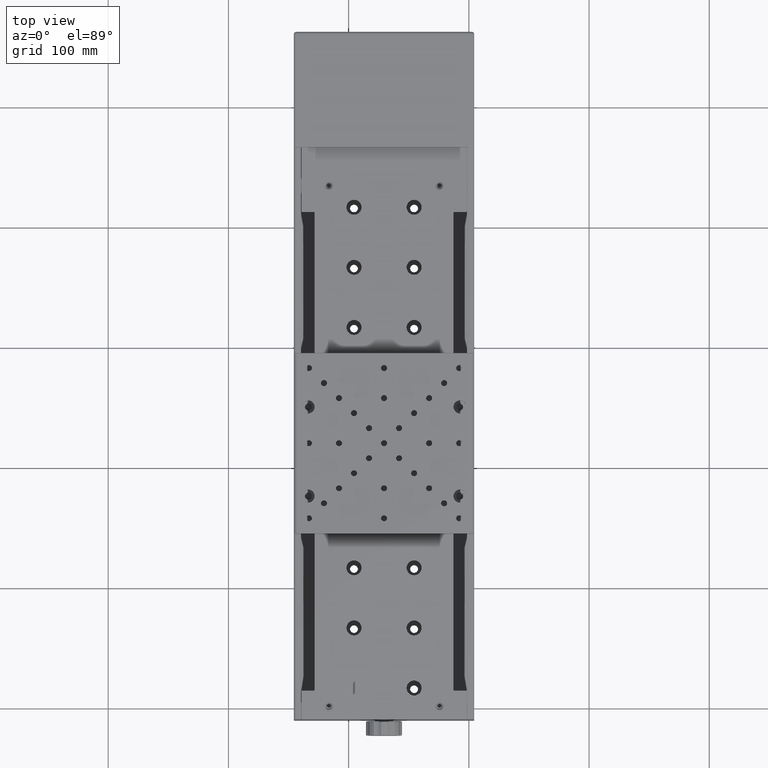
[diagram: clean part render]
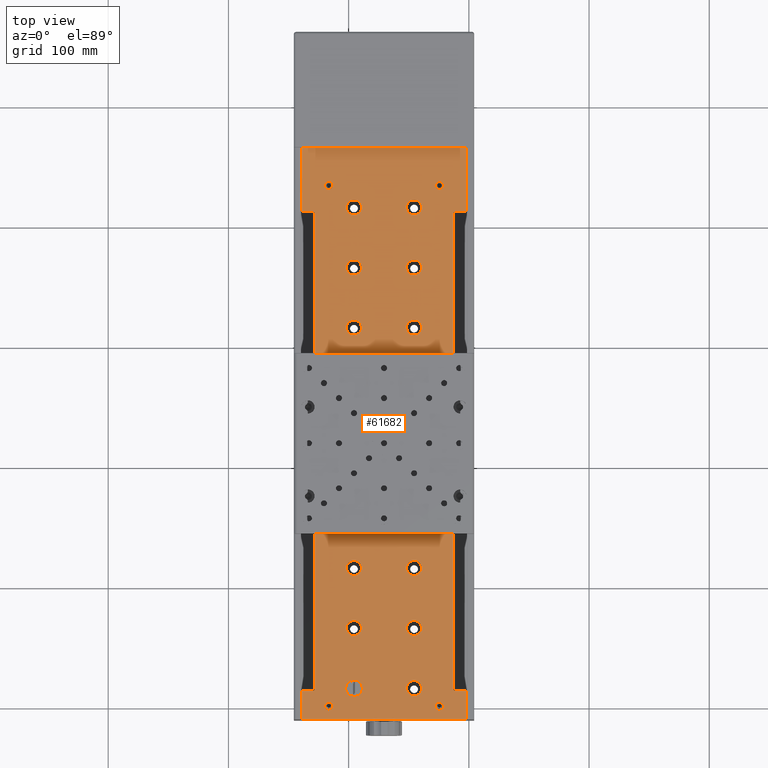
[diagram: same view with one face highlighted and labeled with its STEP entity id]
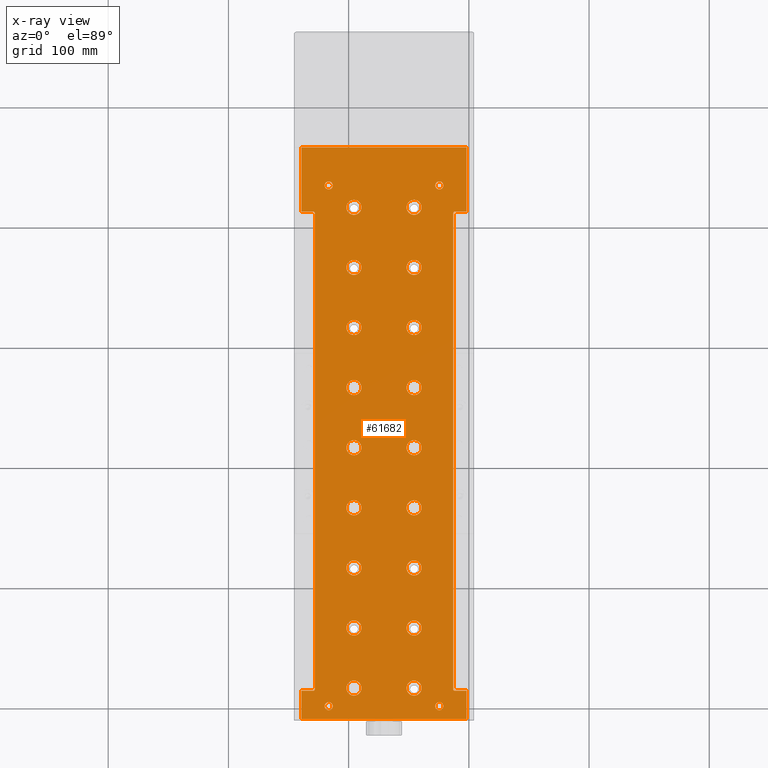
[diagram: x-ray of the same camera — body ghosted, the highlighted face saturated]
A machine part, top view. The second image highlights one B-rep face of the part: STEP entity #61682.
The next image is the same camera in x-ray: the body ghosted, the highlighted face saturated — about 0% of this face is hidden behind the body in this view.
In plain terms, the highlighted planar face has unit normal (0, -0, 1).
Its self-contained STEP definition (entity closure, byte-faithful):
#171 = VERTEX_POINT ( 'NONE', #22665 ) ;
#201 = EDGE_LOOP ( 'NONE', ( #4206, #63130 ) ) ;
#273 = AXIS2_PLACEMENT_3D ( 'NONE', #17600, #43266, #18000 ) ;
#422 = CARTESIAN_POINT ( 'NONE',  ( -45.58543230288079684, 59.78119024182799990, 41.04665025355559749 ) ) ;
#435 = VERTEX_POINT ( 'NONE', #1484 ) ;
#627 = CARTESIAN_POINT ( 'NONE',  ( -95.58543230288069026, 272.2811902418280283, 41.04665025355559749 ) ) ;
#868 = AXIS2_PLACEMENT_3D ( 'NONE', #25882, #26695, #33194 ) ;
#961 = VECTOR ( 'NONE', #31531, 1000.000000000000000 ) ;
#1043 = DIRECTION ( 'NONE',  ( 5.394906579123439885E-17, 0.000000000000000000, 1.000000000000000000 ) ) ;
#1165 = AXIS2_PLACEMENT_3D ( 'NONE', #66423, #22456, #28574 ) ;
#1302 = CIRCLE ( 'NONE', #59803, 6.250000000000005329 ) ;
#1451 = VECTOR ( 'NONE', #71578, 1000.000000000000000 ) ;
#1484 = CARTESIAN_POINT ( 'NONE',  ( -45.58543230288089632, -90.21880975817200010, 41.04665025355559749 ) ) ;
#1656 = CARTESIAN_POINT ( 'NONE',  ( -95.58543230288090342, -90.21880975817200010, 41.04665025355559749 ) ) ;
#2136 = CIRCLE ( 'NONE', #868, 6.250000000000001776 ) ;
#2307 = AXIS2_PLACEMENT_3D ( 'NONE', #77266, #27222, #46333 ) ;
#2448 = EDGE_CURVE ( 'NONE', #18149, #435, #70475, .T. ) ;
#2845 = DIRECTION ( 'NONE',  ( 0.000000000000000000, 1.000000000000000000, 0.000000000000000000 ) ) ;
#3046 = ORIENTED_EDGE ( 'NONE', *, *, #48364, .F. ) ;
#3328 = EDGE_CURVE ( 'NONE', #56390, #43816, #13496, .T. ) ;
#3615 = VERTEX_POINT ( 'NONE', #31246 ) ;
#4145 = CARTESIAN_POINT ( 'NONE',  ( -45.58543230288089632, -33.96880975817204984, 41.04665025355559749 ) ) ;
#4206 = ORIENTED_EDGE ( 'NONE', *, *, #35173, .F. ) ;
#4210 = CIRCLE ( 'NONE', #73129, 6.249999999999998224 ) ;
#4266 = ORIENTED_EDGE ( 'NONE', *, *, #26356, .T. ) ;
#4406 = CARTESIAN_POINT ( 'NONE',  ( -129.3854323028806164, 311.2311902418280170, 41.04665025355559749 ) ) ;
#4463 = CIRCLE ( 'NONE', #61651, 6.249999999999977796 ) ;
#4918 = CIRCLE ( 'NONE', #2307, 1.200000000000034373 ) ;
#5207 = AXIS2_PLACEMENT_3D ( 'NONE', #50328, #44233, #61761 ) ;
#5231 = AXIS2_PLACEMENT_3D ( 'NONE', #29546, #54380, #73099 ) ;
#5461 = CARTESIAN_POINT ( 'NONE',  ( -24.58543230288094961, -98.96880975817198589, 41.04665025355559749 ) ) ;
#5548 = DIRECTION ( 'NONE',  ( 5.394906579123439885E-17, 0.000000000000000000, 1.000000000000000000 ) ) ;
#5596 = CIRCLE ( 'NONE', #70619, 3.359999999999974118 ) ;
#5640 = AXIS2_PLACEMENT_3D ( 'NONE', #43349, #80392, #79180 ) ;
#5733 = CARTESIAN_POINT ( 'NONE',  ( -95.58543230288080395, 72.28119024182799990, 41.04665025355559749 ) ) ;
#6095 = CARTESIAN_POINT ( 'NONE',  ( -45.58543230288070447, 316.0311902418280283, 41.04665025355559749 ) ) ;
#6101 = CARTESIAN_POINT ( 'NONE',  ( -139.3854323028806164, 365.8311902418279828, 41.04665025355559749 ) ) ;
#6648 = CARTESIAN_POINT ( 'NONE',  ( -95.58543230288080395, 116.0311902418279999, 41.04665025355559749 ) ) ;
#6687 = CARTESIAN_POINT ( 'NONE',  ( -45.58543230288089632, -77.71880975817200010, 41.04665025355559749 ) ) ;
#6768 = CIRCLE ( 'NONE', #273, 3.360000000000002096 ) ;
#6841 = FACE_BOUND ( 'NONE', #18883, .T. ) ;
#7195 = CARTESIAN_POINT ( 'NONE',  ( -95.58543230288080395, 122.2811902418279999, 41.04665025355559749 ) ) ;
#7234 = FACE_BOUND ( 'NONE', #11617, .T. ) ;
#7345 = EDGE_CURVE ( 'NONE', #36289, #20550, #24306, .T. ) ;
#7498 = EDGE_LOOP ( 'NONE', ( #23540, #18574 ) ) ;
#7503 = VERTEX_POINT ( 'NONE', #54463 ) ;
#7619 = DIRECTION ( 'NONE',  ( -1.000000000000000000, 4.293440603042595093E-16, 5.394906579123439885E-17 ) ) ;
#7640 = VERTEX_POINT ( 'NONE', #12097 ) ;
#7698 = CARTESIAN_POINT ( 'NONE',  ( -95.58543230288090342, -83.96880975817198589, 41.04665025355559749 ) ) ;
#8013 = ORIENTED_EDGE ( 'NONE', *, *, #15880, .F. ) ;
#8097 = EDGE_CURVE ( 'NONE', #19071, #66377, #12317, .T. ) ;
#8408 = EDGE_CURVE ( 'NONE', #26999, #46272, #64395, .T. ) ;
#8757 = VECTOR ( 'NONE', #51404, 1000.000000000000000 ) ;
#8768 = CIRCLE ( 'NONE', #64758, 6.250000000000005329 ) ;
#8784 = VERTEX_POINT ( 'NONE', #15052 ) ;
#8982 = VERTEX_POINT ( 'NONE', #17451 ) ;
#9235 = DIRECTION ( 'NONE',  ( 0.000000000000000000, -1.000000000000000000, -6.349248535958970176E-17 ) ) ;
#9288 = LINE ( 'NONE', #34131, #39001 ) ;
#9300 = CARTESIAN_POINT ( 'NONE',  ( -11.78543230288092047, -86.16880975817210242, 41.04665025355554775 ) ) ;
#9327 = EDGE_CURVE ( 'NONE', #171, #51686, #69509, .T. ) ;
#9363 = DIRECTION ( 'NONE',  ( 5.394906579123439885E-17, 0.000000000000000000, 1.000000000000000000 ) ) ;
#9756 = VERTEX_POINT ( 'NONE', #35590 ) ;
#10061 = CARTESIAN_POINT ( 'NONE',  ( -45.58543230288070447, 259.7811902418279715, 41.04665025355559749 ) ) ;
#10126 = EDGE_LOOP ( 'NONE', ( #30761, #44096 ) ) ;
#10571 = VERTEX_POINT ( 'NONE', #67044 ) ;
#10767 = ORIENTED_EDGE ( 'NONE', *, *, #18678, .T. ) ;
#10805 = ORIENTED_EDGE ( 'NONE', *, *, #74727, .T. ) ;
#11128 = CARTESIAN_POINT ( 'NONE',  ( -45.58543230288079684, 72.28119024182790042, 41.04665025355559749 ) ) ;
#11467 = VERTEX_POINT ( 'NONE', #38715 ) ;
#11566 = VERTEX_POINT ( 'NONE', #37924 ) ;
#11617 = EDGE_LOOP ( 'NONE', ( #64288, #58425 ) ) ;
#11800 = CIRCLE ( 'NONE', #32613, 6.249999999999977796 ) ;
#12026 = DIRECTION ( 'NONE',  ( 5.394906579123439885E-17, 0.000000000000000000, 1.000000000000000000 ) ) ;
#12093 = DIRECTION ( 'NONE',  ( 5.394906579123439885E-17, 0.000000000000000000, 1.000000000000000000 ) ) ;
#12097 = CARTESIAN_POINT ( 'NONE',  ( -128.1854323028808267, -84.96880975817198589, 41.04665025355559749 ) ) ;
#12232 = CARTESIAN_POINT ( 'NONE',  ( -95.58543230288069026, 309.7811902418279715, 41.04665025355559749 ) ) ;
#12317 = CIRCLE ( 'NONE', #46138, 3.360000000000002096 ) ;
#12367 = ORIENTED_EDGE ( 'NONE', *, *, #75380, .T. ) ;
#12447 = ORIENTED_EDGE ( 'NONE', *, *, #74615, .F. ) ;
#12724 = CARTESIAN_POINT ( 'NONE',  ( -45.58543230288089632, -27.71880975817204984, 41.04665025355559749 ) ) ;
#12938 = FACE_BOUND ( 'NONE', #66929, .T. ) ;
#13342 = FACE_BOUND ( 'NONE', #73927, .T. ) ;
#13488 = DIRECTION ( 'NONE',  ( 5.394906579123439885E-17, 0.000000000000000000, 1.000000000000000000 ) ) ;
#13496 = LINE ( 'NONE', #9300, #1451 ) ;
#13631 = CIRCLE ( 'NONE', #53940, 1.200000000000034373 ) ;
#13727 = PLANE ( 'NONE',  #69490 ) ;
#13912 = CIRCLE ( 'NONE', #63324, 6.250000000000005329 ) ;
#13999 = AXIS2_PLACEMENT_3D ( 'NONE', #21653, #27793, #79036 ) ;
#14458 = AXIS2_PLACEMENT_3D ( 'NONE', #4145, #23252, #78625 ) ;
#14481 = CIRCLE ( 'NONE', #43090, 6.250000000000005329 ) ;
#14532 = DIRECTION ( 'NONE',  ( 1.000000000000000000, -4.293440603042595093E-16, -5.394906579123439885E-17 ) ) ;
#14592 = CARTESIAN_POINT ( 'NONE',  ( -95.58543230288080395, 216.0311902418279999, 41.04665025355559749 ) ) ;
#14776 = CARTESIAN_POINT ( 'NONE',  ( -95.58543230288069026, 266.0311902418279715, 41.04665025355559749 ) ) ;
#14882 = EDGE_CURVE ( 'NONE', #43985, #71114, #6768, .T. ) ;
#14895 = CARTESIAN_POINT ( 'NONE',  ( -24.58543230288094961, -102.3288097581719853, 41.04665025355559749 ) ) ;
#14986 = DIRECTION ( 'NONE',  ( 0.000000000000000000, 1.000000000000000000, 0.000000000000000000 ) ) ;
#15052 = CARTESIAN_POINT ( 'NONE',  ( -128.1854323028806277, 311.2311902418280170, 41.04665025355559749 ) ) ;
#15397 = CARTESIAN_POINT ( 'NONE',  ( -95.58543230288080395, 9.781190241827998122, 41.04665025355559749 ) ) ;
#15590 = VERTEX_POINT ( 'NONE', #27248 ) ;
#15880 = EDGE_CURVE ( 'NONE', #10571, #44391, #39869, .T. ) ;
#16199 = CIRCLE ( 'NONE', #74734, 3.359999999999974118 ) ;
#16363 = CARTESIAN_POINT ( 'NONE',  ( -45.58543230288070447, 266.0311902418279715, 41.04665025355559749 ) ) ;
#16621 = LINE ( 'NONE', #48762, #59155 ) ;
#16707 = DIRECTION ( 'NONE',  ( 0.000000000000000000, 1.000000000000000000, 0.000000000000000000 ) ) ;
#17105 = LINE ( 'NONE', #6101, #75368 ) ;
#17451 = CARTESIAN_POINT ( 'NONE',  ( -95.58543230288080395, 22.28119024182795016, 41.04665025355559749 ) ) ;
#17517 = AXIS2_PLACEMENT_3D ( 'NONE', #6095, #55770, #79369 ) ;
#17600 = CARTESIAN_POINT ( 'NONE',  ( -116.5854323028810029, -98.96880975817198589, 41.04665025355559749 ) ) ;
#17672 = CARTESIAN_POINT ( 'NONE',  ( -116.5854323028810029, -95.60880975817200067, 41.04665025355559749 ) ) ;
#18000 = DIRECTION ( 'NONE',  ( 0.000000000000000000, 1.000000000000000000, 0.000000000000000000 ) ) ;
#18039 = DIRECTION ( 'NONE',  ( 0.000000000000000000, 1.000000000000000000, 0.000000000000000000 ) ) ;
#18149 = VERTEX_POINT ( 'NONE', #6687 ) ;
#18194 = CARTESIAN_POINT ( 'NONE',  ( -139.1854323028807983, 312.2311902418280170, 41.04665025355559749 ) ) ;
#18322 = LINE ( 'NONE', #24420, #52328 ) ;
#18574 = ORIENTED_EDGE ( 'NONE', *, *, #46653, .F. ) ;
#18678 = EDGE_CURVE ( 'NONE', #71089, #37567, #9288, .T. ) ;
#18715 = DIRECTION ( 'NONE',  ( 0.000000000000000000, 1.000000000000000000, 0.000000000000000000 ) ) ;
#18773 = EDGE_LOOP ( 'NONE', ( #70102, #32760 ) ) ;
#18883 = EDGE_LOOP ( 'NONE', ( #29471, #26381 ) ) ;
#18896 = CIRCLE ( 'NONE', #39708, 6.250000000000005329 ) ;
#19070 = CIRCLE ( 'NONE', #46326, 3.359999999999974118 ) ;
#19071 = VERTEX_POINT ( 'NONE', #14895 ) ;
#19400 = DIRECTION ( 'NONE',  ( 0.000000000000000000, 1.000000000000000000, 0.000000000000000000 ) ) ;
#19616 = CIRCLE ( 'NONE', #14458, 6.249999999999998224 ) ;
#19695 = LINE ( 'NONE', #68567, #961 ) ;
#19704 = CARTESIAN_POINT ( 'NONE',  ( -139.1854323028805993, 365.8311902418279828, 41.04665025355559749 ) ) ;
#19712 = CIRCLE ( 'NONE', #30151, 6.250000000000005329 ) ;
#19728 = DIRECTION ( 'NONE',  ( 5.394906579123439885E-17, 0.000000000000000000, 1.000000000000000000 ) ) ;
#19737 = EDGE_CURVE ( 'NONE', #73281, #23054, #60013, .T. ) ;
#19844 = FACE_BOUND ( 'NONE', #28530, .T. ) ;
#19868 = EDGE_CURVE ( 'NONE', #26015, #11566, #61352, .T. ) ;
#19984 = DIRECTION ( 'NONE',  ( 5.394906579123439885E-17, 0.000000000000000000, 1.000000000000000000 ) ) ;
#19987 = EDGE_CURVE ( 'NONE', #62561, #55207, #19712, .T. ) ;
#20550 = VERTEX_POINT ( 'NONE', #28138 ) ;
#20600 = CIRCLE ( 'NONE', #1165, 3.360000000000002096 ) ;
#20649 = ORIENTED_EDGE ( 'NONE', *, *, #51285, .F. ) ;
#20681 = EDGE_CURVE ( 'NONE', #63813, #24332, #18322, .T. ) ;
#20726 = CIRCLE ( 'NONE', #36361, 6.250000000000005329 ) ;
#20940 = DIRECTION ( 'NONE',  ( 5.394906579123439885E-17, 0.000000000000000000, 1.000000000000000000 ) ) ;
#21164 = CARTESIAN_POINT ( 'NONE',  ( -45.58543230288079684, 66.03119024182799990, 41.04665025355559749 ) ) ;
#21189 = CARTESIAN_POINT ( 'NONE',  ( -95.58543230288080395, 172.2811902418279999, 41.04665025355559749 ) ) ;
#21191 = CARTESIAN_POINT ( 'NONE',  ( -11.78543230288092047, -84.96880975817209958, 41.04665025355554775 ) ) ;
#21195 = CARTESIAN_POINT ( 'NONE',  ( -95.58543230288069026, 316.0311902418280283, 41.04665025355559749 ) ) ;
#21653 = CARTESIAN_POINT ( 'NONE',  ( -95.58543230288080395, 166.0311902418280283, 41.04665025355559749 ) ) ;
#21668 = AXIS2_PLACEMENT_3D ( 'NONE', #69791, #19728, #57989 ) ;
#21776 = CIRCLE ( 'NONE', #28305, 6.250000000000001776 ) ;
#21907 = CARTESIAN_POINT ( 'NONE',  ( -45.58543230288070447, 316.0311902418280283, 41.04665025355559749 ) ) ;
#21910 = VERTEX_POINT ( 'NONE', #12232 ) ;
#22347 = CARTESIAN_POINT ( 'NONE',  ( -45.58543230288079684, 172.2811902418279999, 41.04665025355559749 ) ) ;
#22370 = VERTEX_POINT ( 'NONE', #44680 ) ;
#22447 = ORIENTED_EDGE ( 'NONE', *, *, #69759, .T. ) ;
#22456 = DIRECTION ( 'NONE',  ( 5.394906579123439885E-17, 0.000000000000000000, 1.000000000000000000 ) ) ;
#22665 = CARTESIAN_POINT ( 'NONE',  ( -45.58543230288079684, 209.7811902418279999, 41.04665025355559749 ) ) ;
#23054 = VERTEX_POINT ( 'NONE', #11128 ) ;
#23120 = DIRECTION ( 'NONE',  ( 0.000000000000000000, 1.000000000000000000, 0.000000000000000000 ) ) ;
#23252 = DIRECTION ( 'NONE',  ( 5.394906579123439885E-17, 0.000000000000000000, 1.000000000000000000 ) ) ;
#23401 = EDGE_CURVE ( 'NONE', #71114, #43985, #20600, .T. ) ;
#23469 = DIRECTION ( 'NONE',  ( 0.000000000000000000, 1.000000000000000000, 0.000000000000000000 ) ) ;
#23540 = ORIENTED_EDGE ( 'NONE', *, *, #54119, .F. ) ;
#24018 = DIRECTION ( 'NONE',  ( 0.000000000000000000, 1.000000000000000000, 0.000000000000000000 ) ) ;
#24054 = DIRECTION ( 'NONE',  ( 0.000000000000000000, 1.000000000000000000, 0.000000000000000000 ) ) ;
#24306 = CIRCLE ( 'NONE', #45115, 6.250000000000005329 ) ;
#24332 = VERTEX_POINT ( 'NONE', #56614 ) ;
#24364 = ORIENTED_EDGE ( 'NONE', *, *, #43277, .F. ) ;
#24420 = CARTESIAN_POINT ( 'NONE',  ( -1.785432302880920030, -109.7688097581719973, 41.04665025355554775 ) ) ;
#24604 = EDGE_CURVE ( 'NONE', #46192, #77617, #59846, .T. ) ;
#24654 = ORIENTED_EDGE ( 'NONE', *, *, #60310, .T. ) ;
#24717 = DIRECTION ( 'NONE',  ( 5.394906579123439885E-17, 0.000000000000000000, 1.000000000000000000 ) ) ;
#24749 = FACE_BOUND ( 'NONE', #33676, .T. ) ;
#24857 = VERTEX_POINT ( 'NONE', #71410 ) ;
#25229 = DIRECTION ( 'NONE',  ( 0.000000000000000000, 1.000000000000000000, 0.000000000000000000 ) ) ;
#25235 = CARTESIAN_POINT ( 'NONE',  ( -45.58543230288089632, -33.96880975817204984, 41.04665025355559749 ) ) ;
#25425 = DIRECTION ( 'NONE',  ( 0.000000000000000000, 1.000000000000000000, 0.000000000000000000 ) ) ;
#25442 = EDGE_CURVE ( 'NONE', #11467, #28446, #19616, .T. ) ;
#25882 = CARTESIAN_POINT ( 'NONE',  ( -95.58543230288080395, 16.03119024182799990, 41.04665025355559749 ) ) ;
#25947 = ORIENTED_EDGE ( 'NONE', *, *, #79509, .F. ) ;
#26015 = VERTEX_POINT ( 'NONE', #56533 ) ;
#26122 = DIRECTION ( 'NONE',  ( 0.000000000000000000, 1.000000000000000000, 0.000000000000000000 ) ) ;
#26249 = DIRECTION ( 'NONE',  ( 5.394906579123439885E-17, 0.000000000000000000, 1.000000000000000000 ) ) ;
#26356 = EDGE_CURVE ( 'NONE', #24332, #56390, #68632, .T. ) ;
#26381 = ORIENTED_EDGE ( 'NONE', *, *, #14882, .F. ) ;
#26474 = EDGE_CURVE ( 'NONE', #46272, #26999, #21776, .T. ) ;
#26695 = DIRECTION ( 'NONE',  ( 5.394906579123439885E-17, 0.000000000000000000, 1.000000000000000000 ) ) ;
#26716 = CARTESIAN_POINT ( 'NONE',  ( -139.1854323028809972, -109.9688097581720001, 41.04665025355559749 ) ) ;
#26863 = CARTESIAN_POINT ( 'NONE',  ( -45.58543230288079684, 66.03119024182799990, 41.04665025355559749 ) ) ;
#26998 = ORIENTED_EDGE ( 'NONE', *, *, #79833, .F. ) ;
#26999 = VERTEX_POINT ( 'NONE', #72841 ) ;
#27063 = VERTEX_POINT ( 'NONE', #65934 ) ;
#27188 = VERTEX_POINT ( 'NONE', #42962 ) ;
#27222 = DIRECTION ( 'NONE',  ( -5.394906579123439885E-17, 0.000000000000000000, -1.000000000000000000 ) ) ;
#27229 = EDGE_LOOP ( 'NONE', ( #69929, #66398 ) ) ;
#27248 = CARTESIAN_POINT ( 'NONE',  ( -11.78543230288072152, 312.4311902418280056, 41.04665025355559749 ) ) ;
#27793 = DIRECTION ( 'NONE',  ( 5.394906579123439885E-17, 0.000000000000000000, 1.000000000000000000 ) ) ;
#27940 = DIRECTION ( 'NONE',  ( 0.000000000000000000, 1.000000000000000000, 0.000000000000000000 ) ) ;
#28015 = DIRECTION ( 'NONE',  ( 5.394906579123439885E-17, 0.000000000000000000, 1.000000000000000000 ) ) ;
#28138 = CARTESIAN_POINT ( 'NONE',  ( -95.58543230288080395, 209.7811902418279999, 41.04665025355559749 ) ) ;
#28305 = AXIS2_PLACEMENT_3D ( 'NONE', #45715, #33900, #78246 ) ;
#28334 = CIRCLE ( 'NONE', #45237, 6.250000000000005329 ) ;
#28446 = VERTEX_POINT ( 'NONE', #12724 ) ;
#28530 = EDGE_LOOP ( 'NONE', ( #25947, #24364 ) ) ;
#28574 = DIRECTION ( 'NONE',  ( 0.000000000000000000, 1.000000000000000000, 0.000000000000000000 ) ) ;
#29027 = CIRCLE ( 'NONE', #70611, 6.249999999999998224 ) ;
#29262 = CARTESIAN_POINT ( 'NONE',  ( -95.58543230288080395, 16.03119024182799990, 41.04665025355559749 ) ) ;
#29306 = AXIS2_PLACEMENT_3D ( 'NONE', #61932, #55035, #24054 ) ;
#29471 = ORIENTED_EDGE ( 'NONE', *, *, #23401, .F. ) ;
#29541 = VECTOR ( 'NONE', #35378, 1000.000000000000000 ) ;
#29546 = CARTESIAN_POINT ( 'NONE',  ( -11.78543230288072152, 311.2311902418280170, 41.04665025355559749 ) ) ;
#29584 = VERTEX_POINT ( 'NONE', #67303 ) ;
#29625 = DIRECTION ( 'NONE',  ( 0.000000000000000000, 1.000000000000000000, 0.000000000000000000 ) ) ;
#30151 = AXIS2_PLACEMENT_3D ( 'NONE', #49155, #24717, #62187 ) ;
#30505 = CIRCLE ( 'NONE', #70815, 3.360000000000002096 ) ;
#30651 = AXIS2_PLACEMENT_3D ( 'NONE', #7698, #57402, #18715 ) ;
#30713 = ORIENTED_EDGE ( 'NONE', *, *, #80186, .T. ) ;
#30761 = ORIENTED_EDGE ( 'NONE', *, *, #26474, .F. ) ;
#30789 = AXIS2_PLACEMENT_3D ( 'NONE', #68792, #43560, #25229 ) ;
#30932 = CIRCLE ( 'NONE', #13999, 6.250000000000005329 ) ;
#30995 = EDGE_CURVE ( 'NONE', #51686, #171, #48948, .T. ) ;
#31134 = CARTESIAN_POINT ( 'NONE',  ( -45.58543230288070447, 266.0311902418279715, 41.04665025355559749 ) ) ;
#31246 = CARTESIAN_POINT ( 'NONE',  ( -12.98543230288096062, -84.96880975817209958, 41.04665025355554775 ) ) ;
#31361 = EDGE_CURVE ( 'NONE', #22370, #63813, #52753, .T. ) ;
#31531 = DIRECTION ( 'NONE',  ( 4.293440603042595093E-16, 1.000000000000000000, 6.349248535958960315E-17 ) ) ;
#31631 = CARTESIAN_POINT ( 'NONE',  ( -45.58543230288089632, -83.96880975817198589, 41.04665025355559749 ) ) ;
#31839 = VERTEX_POINT ( 'NONE', #21189 ) ;
#32061 = FACE_BOUND ( 'NONE', #7498, .T. ) ;
#32142 = EDGE_CURVE ( 'NONE', #7640, #32469, #4918, .T. ) ;
#32214 = DIRECTION ( 'NONE',  ( 1.445602896647297896E-15, 1.000000000000000000, 0.000000000000000000 ) ) ;
#32469 = VERTEX_POINT ( 'NONE', #37331 ) ;
#32491 = EDGE_CURVE ( 'NONE', #37130, #69429, #28334, .T. ) ;
#32613 = AXIS2_PLACEMENT_3D ( 'NONE', #21195, #13488, #51339 ) ;
#32760 = ORIENTED_EDGE ( 'NONE', *, *, #32491, .F. ) ;
#32911 = VERTEX_POINT ( 'NONE', #19704 ) ;
#33194 = DIRECTION ( 'NONE',  ( 0.000000000000000000, 1.000000000000000000, 0.000000000000000000 ) ) ;
#33342 = DIRECTION ( 'NONE',  ( 5.394906579123439885E-17, 0.000000000000000000, 1.000000000000000000 ) ) ;
#33418 = CARTESIAN_POINT ( 'NONE',  ( -24.58543230288070092, 334.2311902418280170, 41.04665025355559749 ) ) ;
#33494 = ORIENTED_EDGE ( 'NONE', *, *, #9327, .F. ) ;
#33603 = EDGE_CURVE ( 'NONE', #37567, #8784, #58544, .T. ) ;
#33676 = EDGE_LOOP ( 'NONE', ( #76624, #12447 ) ) ;
#33682 = CIRCLE ( 'NONE', #54507, 6.249999999999977796 ) ;
#33746 = DIRECTION ( 'NONE',  ( 0.000000000000000000, 1.000000000000000000, 0.000000000000000000 ) ) ;
#33813 = AXIS2_PLACEMENT_3D ( 'NONE', #68220, #5548, #61326 ) ;
#33900 = DIRECTION ( 'NONE',  ( 5.394906579123439885E-17, 0.000000000000000000, 1.000000000000000000 ) ) ;
#33965 = CARTESIAN_POINT ( 'NONE',  ( -45.58543230288079684, 166.0311902418280283, 41.04665025355559749 ) ) ;
#34131 = CARTESIAN_POINT ( 'NONE',  ( -129.3854323028806164, 312.4311902418280056, 41.04665025355559749 ) ) ;
#34180 = ORIENTED_EDGE ( 'NONE', *, *, #71330, .T. ) ;
#34316 = VERTEX_POINT ( 'NONE', #37643 ) ;
#34484 = ORIENTED_EDGE ( 'NONE', *, *, #73626, .F. ) ;
#35173 = EDGE_CURVE ( 'NONE', #77617, #46192, #14481, .T. ) ;
#35214 = ORIENTED_EDGE ( 'NONE', *, *, #31361, .T. ) ;
#35378 = DIRECTION ( 'NONE',  ( 4.293440603042595093E-16, 1.000000000000000000, 6.349248535958960315E-17 ) ) ;
#35386 = AXIS2_PLACEMENT_3D ( 'NONE', #14776, #52241, #53054 ) ;
#35538 = EDGE_LOOP ( 'NONE', ( #61151, #33494 ) ) ;
#35590 = CARTESIAN_POINT ( 'NONE',  ( -1.985432302880700162, 312.4311902418280056, 41.04665025355559749 ) ) ;
#35718 = DIRECTION ( 'NONE',  ( -4.326251308519575310E-16, -1.000000000000000000, -6.349248535958960315E-17 ) ) ;
#36069 = EDGE_CURVE ( 'NONE', #28446, #11467, #4210, .T. ) ;
#36289 = VERTEX_POINT ( 'NONE', #40665 ) ;
#36298 = EDGE_LOOP ( 'NONE', ( #78191, #48049 ) ) ;
#36361 = AXIS2_PLACEMENT_3D ( 'NONE', #78586, #64092, #16707 ) ;
#36549 = AXIS2_PLACEMENT_3D ( 'NONE', #76392, #57306, #24018 ) ;
#36634 = AXIS2_PLACEMENT_3D ( 'NONE', #21164, #9363, #70827 ) ;
#36759 = EDGE_CURVE ( 'NONE', #57774, #64868, #5596, .T. ) ;
#36881 = CARTESIAN_POINT ( 'NONE',  ( -1.985432302880895339, -85.96880975817209958, 41.04665025355554775 ) ) ;
#37053 = DIRECTION ( 'NONE',  ( 5.394906579123439885E-17, 0.000000000000000000, 1.000000000000000000 ) ) ;
#37130 = VERTEX_POINT ( 'NONE', #68924 ) ;
#37253 = CARTESIAN_POINT ( 'NONE',  ( -116.5854323028806050, 334.2311902418280170, 41.04665025355559749 ) ) ;
#37331 = CARTESIAN_POINT ( 'NONE',  ( -129.3854323028809858, -86.16880975817200294, 41.04665025355559749 ) ) ;
#37372 = FACE_BOUND ( 'NONE', #35538, .T. ) ;
#37535 = EDGE_LOOP ( 'NONE', ( #3046, #54891 ) ) ;
#37567 = VERTEX_POINT ( 'NONE', #68378 ) ;
#37643 = CARTESIAN_POINT ( 'NONE',  ( -95.58543230288090342, -40.21880975817200010, 41.04665025355559749 ) ) ;
#37778 = FACE_BOUND ( 'NONE', #47019, .T. ) ;
#37924 = CARTESIAN_POINT ( 'NONE',  ( -45.58543230288070447, 322.2811902418279715, 41.04665025355559749 ) ) ;
#38087 = ORIENTED_EDGE ( 'NONE', *, *, #36069, .F. ) ;
#38196 = EDGE_CURVE ( 'NONE', #34316, #24857, #29027, .T. ) ;
#38200 = CARTESIAN_POINT ( 'NONE',  ( -45.58543230288070447, 272.2811902418280283, 41.04665025355559749 ) ) ;
#38567 = CARTESIAN_POINT ( 'NONE',  ( -145.5854323028810029, -109.9688097581720001, 41.04665025355559749 ) ) ;
#38631 = ORIENTED_EDGE ( 'NONE', *, *, #59280, .F. ) ;
#38675 = EDGE_CURVE ( 'NONE', #69429, #37130, #13912, .T. ) ;
#38715 = CARTESIAN_POINT ( 'NONE',  ( -45.58543230288089632, -40.21880975817204984, 41.04665025355559749 ) ) ;
#38924 = ORIENTED_EDGE ( 'NONE', *, *, #79562, .T. ) ;
#38935 = DIRECTION ( 'NONE',  ( 5.394906579123439885E-17, 0.000000000000000000, 1.000000000000000000 ) ) ;
#39001 = VECTOR ( 'NONE', #46734, 1000.000000000000000 ) ;
#39130 = DIRECTION ( 'NONE',  ( 5.394906579123439885E-17, 0.000000000000000000, 1.000000000000000000 ) ) ;
#39366 = LINE ( 'NONE', #78004, #67329 ) ;
#39371 = CARTESIAN_POINT ( 'NONE',  ( -45.58543230288089632, 22.28119024182795016, 41.04665025355559749 ) ) ;
#39483 = EDGE_CURVE ( 'NONE', #15590, #9756, #39366, .T. ) ;
#39708 = AXIS2_PLACEMENT_3D ( 'NONE', #26863, #70796, #2845 ) ;
#39713 = CIRCLE ( 'NONE', #30651, 6.250000000000005329 ) ;
#39757 = VECTOR ( 'NONE', #7619, 1000.000000000000000 ) ;
#39869 = CIRCLE ( 'NONE', #21668, 6.250000000000005329 ) ;
#40299 = CIRCLE ( 'NONE', #5207, 3.359999999999974118 ) ;
#40665 = CARTESIAN_POINT ( 'NONE',  ( -95.58543230288080395, 222.2811902418279999, 41.04665025355559749 ) ) ;
#40791 = DIRECTION ( 'NONE',  ( 0.000000000000000000, 1.000000000000000000, 0.000000000000000000 ) ) ;
#41051 = CARTESIAN_POINT ( 'NONE',  ( -95.58543230288090342, -83.96880975817198589, 41.04665025355559749 ) ) ;
#41223 = ORIENTED_EDGE ( 'NONE', *, *, #47673, .T. ) ;
#42146 = VERTEX_POINT ( 'NONE', #38200 ) ;
#42231 = CIRCLE ( 'NONE', #17517, 6.249999999999977796 ) ;
#42244 = DIRECTION ( 'NONE',  ( 0.000000000000000000, 1.000000000000000000, 0.000000000000000000 ) ) ;
#42962 = CARTESIAN_POINT ( 'NONE',  ( -95.58543230288069026, 259.7811902418279715, 41.04665025355559749 ) ) ;
#43010 = CARTESIAN_POINT ( 'NONE',  ( -45.58543230288079684, 216.0311902418279999, 41.04665025355559749 ) ) ;
#43046 = LINE ( 'NONE', #18194, #78667 ) ;
#43070 = CARTESIAN_POINT ( 'NONE',  ( -1.985432302880700162, 365.8311902418279828, 41.04665025355559749 ) ) ;
#43090 = AXIS2_PLACEMENT_3D ( 'NONE', #68184, #26249, #25425 ) ;
#43167 = AXIS2_PLACEMENT_3D ( 'NONE', #31631, #55668, #19400 ) ;
#43168 = DIRECTION ( 'NONE',  ( 1.000000000000000000, -3.068793803895244598E-16, -5.394906579123439885E-17 ) ) ;
#43266 = DIRECTION ( 'NONE',  ( 5.394906579123439885E-17, 0.000000000000000000, 1.000000000000000000 ) ) ;
#43277 = EDGE_CURVE ( 'NONE', #29584, #27063, #40299, .T. ) ;
#43349 = CARTESIAN_POINT ( 'NONE',  ( -95.58543230288090342, -33.96880975817204984, 41.04665025355559749 ) ) ;
#43434 = CARTESIAN_POINT ( 'NONE',  ( -45.58543230288079684, 166.0311902418280283, 41.04665025355559749 ) ) ;
#43477 = FACE_BOUND ( 'NONE', #62270, .T. ) ;
#43560 = DIRECTION ( 'NONE',  ( 5.394906579123439885E-17, 0.000000000000000000, 1.000000000000000000 ) ) ;
#43816 = VERTEX_POINT ( 'NONE', #64473 ) ;
#43878 = FACE_BOUND ( 'NONE', #10126, .T. ) ;
#43985 = VERTEX_POINT ( 'NONE', #73768 ) ;
#44096 = ORIENTED_EDGE ( 'NONE', *, *, #8408, .F. ) ;
#44187 = AXIS2_PLACEMENT_3D ( 'NONE', #4406, #67482, #72376 ) ;
#44233 = DIRECTION ( 'NONE',  ( 5.394906579123439885E-17, 0.000000000000000000, 1.000000000000000000 ) ) ;
#44391 = VERTEX_POINT ( 'NONE', #7195 ) ;
#44588 = DIRECTION ( 'NONE',  ( 0.000000000000000000, 1.000000000000000000, 0.000000000000000000 ) ) ;
#44680 = CARTESIAN_POINT ( 'NONE',  ( -139.1854323028809972, -86.16880975817200294, 41.04665025355559749 ) ) ;
#44683 = FACE_BOUND ( 'NONE', #37535, .T. ) ;
#44685 = CIRCLE ( 'NONE', #5640, 6.249999999999998224 ) ;
#45115 = AXIS2_PLACEMENT_3D ( 'NONE', #14592, #28015, #14986 ) ;
#45197 = CARTESIAN_POINT ( 'NONE',  ( -95.58543230288090342, -77.71880975817200010, 41.04665025355559749 ) ) ;
#45237 = AXIS2_PLACEMENT_3D ( 'NONE', #43434, #68270, #62174 ) ;
#45291 = VERTEX_POINT ( 'NONE', #627 ) ;
#45715 = CARTESIAN_POINT ( 'NONE',  ( -45.58543230288089632, 16.03119024182795016, 41.04665025355559749 ) ) ;
#45856 = CARTESIAN_POINT ( 'NONE',  ( -95.58543230288090342, -33.96880975817204984, 41.04665025355559749 ) ) ;
#45911 = CARTESIAN_POINT ( 'NONE',  ( -116.5854323028806050, 330.8711902418280033, 41.04665025355559749 ) ) ;
#46138 = AXIS2_PLACEMENT_3D ( 'NONE', #5461, #73826, #18039 ) ;
#46192 = VERTEX_POINT ( 'NONE', #54602 ) ;
#46197 = VERTEX_POINT ( 'NONE', #61101 ) ;
#46272 = VERTEX_POINT ( 'NONE', #39371 ) ;
#46321 = AXIS2_PLACEMENT_3D ( 'NONE', #69411, #1043, #52299 ) ;
#46326 = AXIS2_PLACEMENT_3D ( 'NONE', #37253, #12026, #68599 ) ;
#46333 = DIRECTION ( 'NONE',  ( 0.000000000000000000, 1.000000000000000000, 0.000000000000000000 ) ) ;
#46653 = EDGE_CURVE ( 'NONE', #27188, #45291, #68417, .T. ) ;
#46660 = EDGE_CURVE ( 'NONE', #52079, #21910, #73640, .T. ) ;
#46688 = DIRECTION ( 'NONE',  ( 5.394906579123439885E-17, 0.000000000000000000, 1.000000000000000000 ) ) ;
#46734 = DIRECTION ( 'NONE',  ( 1.000000000000000000, -4.293440603042595093E-16, -5.394906579123439885E-17 ) ) ;
#47019 = EDGE_LOOP ( 'NONE', ( #52576, #8013 ) ) ;
#47110 = EDGE_LOOP ( 'NONE', ( #69221, #53683 ) ) ;
#47673 = EDGE_CURVE ( 'NONE', #9756, #68411, #60226, .T. ) ;
#47837 = DIRECTION ( 'NONE',  ( 5.394906579123439885E-17, 0.000000000000000000, 1.000000000000000000 ) ) ;
#48049 = ORIENTED_EDGE ( 'NONE', *, *, #8097, .F. ) ;
#48364 = EDGE_CURVE ( 'NONE', #31839, #7503, #30932, .T. ) ;
#48374 = DIRECTION ( 'NONE',  ( 5.394906579123439885E-17, 0.000000000000000000, 1.000000000000000000 ) ) ;
#48762 = CARTESIAN_POINT ( 'NONE',  ( -128.1854323028808267, -84.96880975817198589, 41.04665025355559749 ) ) ;
#48948 = CIRCLE ( 'NONE', #30789, 6.250000000000005329 ) ;
#49155 = CARTESIAN_POINT ( 'NONE',  ( -45.58543230288079684, 116.0311902418279999, 41.04665025355559749 ) ) ;
#49438 = CIRCLE ( 'NONE', #5231, 1.200000000000034373 ) ;
#49985 = FACE_BOUND ( 'NONE', #47110, .T. ) ;
#50328 = CARTESIAN_POINT ( 'NONE',  ( -24.58543230288070092, 334.2311902418280170, 41.04665025355559749 ) ) ;
#50376 = CARTESIAN_POINT ( 'NONE',  ( -139.3854323028810143, -86.16880975817200294, 41.04665025355559749 ) ) ;
#50696 = EDGE_LOOP ( 'NONE', ( #53365, #53727 ) ) ;
#50790 = FACE_BOUND ( 'NONE', #50696, .T. ) ;
#51285 = EDGE_CURVE ( 'NONE', #21910, #52079, #11800, .T. ) ;
#51339 = DIRECTION ( 'NONE',  ( 0.000000000000000000, 1.000000000000000000, 0.000000000000000000 ) ) ;
#51404 = DIRECTION ( 'NONE',  ( 4.293440603042595093E-16, 1.000000000000000000, 6.349248535958960315E-17 ) ) ;
#51463 = DIRECTION ( 'NONE',  ( 0.000000000000000000, 1.000000000000000000, 0.000000000000000000 ) ) ;
#51587 = ORIENTED_EDGE ( 'NONE', *, *, #46660, .F. ) ;
#51662 = ORIENTED_EDGE ( 'NONE', *, *, #38196, .F. ) ;
#51686 = VERTEX_POINT ( 'NONE', #65380 ) ;
#51794 = CARTESIAN_POINT ( 'NONE',  ( -45.58543230288079684, 109.7811902418279999, 41.04665025355559749 ) ) ;
#51928 = DIRECTION ( 'NONE',  ( -4.326251308519575310E-16, -1.000000000000000000, -6.349248535958960315E-17 ) ) ;
#51985 = CARTESIAN_POINT ( 'NONE',  ( -24.58543230288094961, -98.96880975817198589, 41.04665025355559749 ) ) ;
#52079 = VERTEX_POINT ( 'NONE', #67435 ) ;
#52241 = DIRECTION ( 'NONE',  ( 5.394906579123439885E-17, 0.000000000000000000, 1.000000000000000000 ) ) ;
#52299 = DIRECTION ( 'NONE',  ( 0.000000000000000000, 1.000000000000000000, 0.000000000000000000 ) ) ;
#52328 = VECTOR ( 'NONE', #43168, 1000.000000000000000 ) ;
#52392 = DIRECTION ( 'NONE',  ( 0.000000000000000000, 1.000000000000000000, 0.000000000000000000 ) ) ;
#52484 = ORIENTED_EDGE ( 'NONE', *, *, #65881, .F. ) ;
#52576 = ORIENTED_EDGE ( 'NONE', *, *, #62414, .F. ) ;
#52615 = CARTESIAN_POINT ( 'NONE',  ( -24.58543230288094961, -95.60880975817200067, 41.04665025355559749 ) ) ;
#52753 = LINE ( 'NONE', #26716, #62055 ) ;
#53054 = DIRECTION ( 'NONE',  ( 0.000000000000000000, 1.000000000000000000, 0.000000000000000000 ) ) ;
#53291 = DIRECTION ( 'NONE',  ( -4.293440603042595093E-16, -1.000000000000000000, -6.349248535958960315E-17 ) ) ;
#53365 = ORIENTED_EDGE ( 'NONE', *, *, #36759, .F. ) ;
#53683 = ORIENTED_EDGE ( 'NONE', *, *, #55778, .F. ) ;
#53727 = ORIENTED_EDGE ( 'NONE', *, *, #68860, .F. ) ;
#53940 = AXIS2_PLACEMENT_3D ( 'NONE', #21191, #64773, #32214 ) ;
#53993 = CIRCLE ( 'NONE', #64385, 6.250000000000005329 ) ;
#54119 = EDGE_CURVE ( 'NONE', #45291, #27188, #66602, .T. ) ;
#54380 = DIRECTION ( 'NONE',  ( -5.394906579123439885E-17, 0.000000000000000000, -1.000000000000000000 ) ) ;
#54460 = CARTESIAN_POINT ( 'NONE',  ( -95.58543230288080395, 216.0311902418279999, 41.04665025355559749 ) ) ;
#54463 = CARTESIAN_POINT ( 'NONE',  ( -95.58543230288080395, 159.7811902418280283, 41.04665025355559749 ) ) ;
#54507 = AXIS2_PLACEMENT_3D ( 'NONE', #16363, #64436, #40791 ) ;
#54602 = CARTESIAN_POINT ( 'NONE',  ( -95.58543230288080395, 59.78119024182799990, 41.04665025355559749 ) ) ;
#54853 = VERTEX_POINT ( 'NONE', #15397 ) ;
#54891 = ORIENTED_EDGE ( 'NONE', *, *, #71794, .F. ) ;
#54917 = ORIENTED_EDGE ( 'NONE', *, *, #20681, .T. ) ;
#54964 = ORIENTED_EDGE ( 'NONE', *, *, #39483, .T. ) ;
#55003 = ORIENTED_EDGE ( 'NONE', *, *, #3328, .T. ) ;
#55035 = DIRECTION ( 'NONE',  ( 5.394906579123439885E-17, 0.000000000000000000, 1.000000000000000000 ) ) ;
#55207 = VERTEX_POINT ( 'NONE', #79539 ) ;
#55569 = DIRECTION ( 'NONE',  ( 0.000000000000000000, 1.000000000000000000, 0.000000000000000000 ) ) ;
#55668 = DIRECTION ( 'NONE',  ( 5.394906579123439885E-17, 0.000000000000000000, 1.000000000000000000 ) ) ;
#55770 = DIRECTION ( 'NONE',  ( 5.394906579123439885E-17, 0.000000000000000000, 1.000000000000000000 ) ) ;
#55777 = DIRECTION ( 'NONE',  ( -1.000000000000000000, 4.293440603042595093E-16, 5.394906579123439885E-17 ) ) ;
#55778 = EDGE_CURVE ( 'NONE', #58632, #63173, #1302, .T. ) ;
#56129 = FACE_BOUND ( 'NONE', #18773, .T. ) ;
#56133 = ORIENTED_EDGE ( 'NONE', *, *, #7345, .F. ) ;
#56390 = VERTEX_POINT ( 'NONE', #62888 ) ;
#56509 = LINE ( 'NONE', #50376, #39757 ) ;
#56533 = CARTESIAN_POINT ( 'NONE',  ( -45.58543230288070447, 309.7811902418279715, 41.04665025355559749 ) ) ;
#56614 = CARTESIAN_POINT ( 'NONE',  ( -1.985432302880895339, -109.7688097581719973, 41.04665025355554775 ) ) ;
#57306 = DIRECTION ( 'NONE',  ( 5.394906579123439885E-17, 0.000000000000000000, 1.000000000000000000 ) ) ;
#57322 = FACE_BOUND ( 'NONE', #27229, .T. ) ;
#57402 = DIRECTION ( 'NONE',  ( 5.394906579123439885E-17, 0.000000000000000000, 1.000000000000000000 ) ) ;
#57596 = DIRECTION ( 'NONE',  ( 5.394906579123439885E-17, 0.000000000000000000, 1.000000000000000000 ) ) ;
#57774 = VERTEX_POINT ( 'NONE', #58404 ) ;
#57989 = DIRECTION ( 'NONE',  ( 0.000000000000000000, 1.000000000000000000, 0.000000000000000000 ) ) ;
#58404 = CARTESIAN_POINT ( 'NONE',  ( -116.5854323028806050, 337.5911902418279738, 41.04665025355559749 ) ) ;
#58425 = ORIENTED_EDGE ( 'NONE', *, *, #80555, .F. ) ;
#58544 = CIRCLE ( 'NONE', #44187, 1.200000000000034373 ) ;
#58632 = VERTEX_POINT ( 'NONE', #1656 ) ;
#59155 = VECTOR ( 'NONE', #53291, 1000.000000000000000 ) ;
#59251 = CARTESIAN_POINT ( 'NONE',  ( -139.1854323028807983, 312.4311902418280056, 41.04665025355559749 ) ) ;
#59280 = EDGE_CURVE ( 'NONE', #24857, #34316, #44685, .T. ) ;
#59803 = AXIS2_PLACEMENT_3D ( 'NONE', #41051, #33342, #33746 ) ;
#59846 = CIRCLE ( 'NONE', #33813, 6.250000000000005329 ) ;
#60013 = CIRCLE ( 'NONE', #36634, 6.250000000000005329 ) ;
#60033 = DIRECTION ( 'NONE',  ( 0.000000000000000000, 1.000000000000000000, 0.000000000000000000 ) ) ;
#60226 = LINE ( 'NONE', #67521, #29541 ) ;
#60310 = EDGE_CURVE ( 'NONE', #8784, #7640, #16621, .T. ) ;
#61096 = EDGE_LOOP ( 'NONE', ( #38924, #34180, #12367, #54964, #41223, #10805, #30713, #10767, #72441, #24654, #63697, #22447, #35214, #54917, #4266, #55003 ) ) ;
#61101 = CARTESIAN_POINT ( 'NONE',  ( -12.98543230288075989, 311.2311902418280170, 41.04665025355559749 ) ) ;
#61151 = ORIENTED_EDGE ( 'NONE', *, *, #30995, .F. ) ;
#61326 = DIRECTION ( 'NONE',  ( 0.000000000000000000, 1.000000000000000000, 0.000000000000000000 ) ) ;
#61352 = CIRCLE ( 'NONE', #70395, 6.249999999999977796 ) ;
#61651 = AXIS2_PLACEMENT_3D ( 'NONE', #31134, #47837, #55569 ) ;
#61682 = ADVANCED_FACE ( 'NONE', ( #24749, #49985, #75218, #43477, #43878, #13342, #57322, #68317, #75634, #37778, #56129, #44683, #37372, #62217, #7234, #32061, #68719, #12938, #62622, #6841, #50790, #19844, #69517 ), #13727, .T. ) ;
#61761 = DIRECTION ( 'NONE',  ( 0.000000000000000000, 1.000000000000000000, 0.000000000000000000 ) ) ;
#61773 = EDGE_CURVE ( 'NONE', #66377, #19071, #30505, .T. ) ;
#61932 = CARTESIAN_POINT ( 'NONE',  ( -45.58543230288089632, 16.03119024182795016, 41.04665025355559749 ) ) ;
#62055 = VECTOR ( 'NONE', #51928, 1000.000000000000000 ) ;
#62174 = DIRECTION ( 'NONE',  ( 0.000000000000000000, 1.000000000000000000, 0.000000000000000000 ) ) ;
#62187 = DIRECTION ( 'NONE',  ( 0.000000000000000000, 1.000000000000000000, 0.000000000000000000 ) ) ;
#62217 = FACE_BOUND ( 'NONE', #69786, .T. ) ;
#62270 = EDGE_LOOP ( 'NONE', ( #38631, #51662 ) ) ;
#62366 = CARTESIAN_POINT ( 'NONE',  ( -95.58543230288080395, 166.0311902418280283, 41.04665025355559749 ) ) ;
#62414 = EDGE_CURVE ( 'NONE', #44391, #10571, #53993, .T. ) ;
#62424 = CIRCLE ( 'NONE', #76701, 6.250000000000001776 ) ;
#62561 = VERTEX_POINT ( 'NONE', #51794 ) ;
#62622 = FACE_BOUND ( 'NONE', #36298, .T. ) ;
#62888 = CARTESIAN_POINT ( 'NONE',  ( -1.985432302880895339, -86.16880975817210242, 41.04665025355554775 ) ) ;
#63130 = ORIENTED_EDGE ( 'NONE', *, *, #24604, .F. ) ;
#63173 = VERTEX_POINT ( 'NONE', #45197 ) ;
#63324 = AXIS2_PLACEMENT_3D ( 'NONE', #33965, #57596, #51463 ) ;
#63404 = DIRECTION ( 'NONE',  ( 5.394906579123439885E-17, -6.349248535958970176E-17, 1.000000000000000000 ) ) ;
#63496 = EDGE_CURVE ( 'NONE', #54853, #8982, #2136, .T. ) ;
#63697 = ORIENTED_EDGE ( 'NONE', *, *, #32142, .T. ) ;
#63719 = CARTESIAN_POINT ( 'NONE',  ( -95.58543230288069026, 266.0311902418279715, 41.04665025355559749 ) ) ;
#63813 = VERTEX_POINT ( 'NONE', #74653 ) ;
#64092 = DIRECTION ( 'NONE',  ( 5.394906579123439885E-17, 0.000000000000000000, 1.000000000000000000 ) ) ;
#64288 = ORIENTED_EDGE ( 'NONE', *, *, #66330, .F. ) ;
#64385 = AXIS2_PLACEMENT_3D ( 'NONE', #6648, #79920, #80325 ) ;
#64395 = CIRCLE ( 'NONE', #29306, 6.250000000000001776 ) ;
#64436 = DIRECTION ( 'NONE',  ( 5.394906579123439885E-17, 0.000000000000000000, 1.000000000000000000 ) ) ;
#64473 = CARTESIAN_POINT ( 'NONE',  ( -11.78543230288092047, -86.16880975817210242, 41.04665025355554775 ) ) ;
#64604 = ORIENTED_EDGE ( 'NONE', *, *, #19987, .F. ) ;
#64758 = AXIS2_PLACEMENT_3D ( 'NONE', #62366, #19984, #69674 ) ;
#64773 = DIRECTION ( 'NONE',  ( -5.394906579123449746E-17, 7.798892577922419999E-32, -1.000000000000000000 ) ) ;
#64868 = VERTEX_POINT ( 'NONE', #45911 ) ;
#65172 = EDGE_LOOP ( 'NONE', ( #71132, #64604 ) ) ;
#65380 = CARTESIAN_POINT ( 'NONE',  ( -45.58543230288079684, 222.2811902418279999, 41.04665025355559749 ) ) ;
#65820 = ORIENTED_EDGE ( 'NONE', *, *, #63496, .F. ) ;
#65881 = EDGE_CURVE ( 'NONE', #20550, #36289, #75230, .T. ) ;
#65934 = CARTESIAN_POINT ( 'NONE',  ( -24.58543230288070092, 337.5911902418279738, 41.04665025355559749 ) ) ;
#66330 = EDGE_CURVE ( 'NONE', #42146, #78737, #33682, .T. ) ;
#66377 = VERTEX_POINT ( 'NONE', #52615 ) ;
#66398 = ORIENTED_EDGE ( 'NONE', *, *, #19737, .F. ) ;
#66423 = CARTESIAN_POINT ( 'NONE',  ( -116.5854323028810029, -98.96880975817198589, 41.04665025355559749 ) ) ;
#66602 = CIRCLE ( 'NONE', #35386, 6.249999999999977796 ) ;
#66929 = EDGE_LOOP ( 'NONE', ( #51587, #20649 ) ) ;
#67044 = CARTESIAN_POINT ( 'NONE',  ( -95.58543230288080395, 109.7811902418279999, 41.04665025355559749 ) ) ;
#67303 = CARTESIAN_POINT ( 'NONE',  ( -24.58543230288075421, 330.8711902418280033, 41.04665025355559749 ) ) ;
#67329 = VECTOR ( 'NONE', #14532, 1000.000000000000000 ) ;
#67435 = CARTESIAN_POINT ( 'NONE',  ( -95.58543230288069026, 322.2811902418279715, 41.04665025355559749 ) ) ;
#67482 = DIRECTION ( 'NONE',  ( -5.394906579123439885E-17, 0.000000000000000000, -1.000000000000000000 ) ) ;
#67521 = CARTESIAN_POINT ( 'NONE',  ( -1.985432302880700162, 366.0311902418280283, 41.04665025355559749 ) ) ;
#67852 = DIRECTION ( 'NONE',  ( 5.394906579123439885E-17, 0.000000000000000000, 1.000000000000000000 ) ) ;
#68002 = DIRECTION ( 'NONE',  ( 0.000000000000000000, 1.000000000000000000, 0.000000000000000000 ) ) ;
#68067 = EDGE_CURVE ( 'NONE', #63173, #58632, #39713, .T. ) ;
#68184 = CARTESIAN_POINT ( 'NONE',  ( -95.58543230288080395, 66.03119024182799990, 41.04665025355559749 ) ) ;
#68220 = CARTESIAN_POINT ( 'NONE',  ( -95.58543230288080395, 66.03119024182799990, 41.04665025355559749 ) ) ;
#68270 = DIRECTION ( 'NONE',  ( 5.394906579123439885E-17, 0.000000000000000000, 1.000000000000000000 ) ) ;
#68317 = FACE_BOUND ( 'NONE', #201, .T. ) ;
#68378 = CARTESIAN_POINT ( 'NONE',  ( -129.3854323028806164, 312.4311902418280056, 41.04665025355559749 ) ) ;
#68411 = VERTEX_POINT ( 'NONE', #43070 ) ;
#68417 = CIRCLE ( 'NONE', #72301, 6.249999999999977796 ) ;
#68567 = CARTESIAN_POINT ( 'NONE',  ( -12.98543230288075989, 311.2311902418280170, 41.04665025355559749 ) ) ;
#68599 = DIRECTION ( 'NONE',  ( 0.000000000000000000, 1.000000000000000000, 0.000000000000000000 ) ) ;
#68632 = LINE ( 'NONE', #36881, #8757 ) ;
#68719 = FACE_BOUND ( 'NONE', #79304, .T. ) ;
#68792 = CARTESIAN_POINT ( 'NONE',  ( -45.58543230288079684, 216.0311902418279999, 41.04665025355559749 ) ) ;
#68860 = EDGE_CURVE ( 'NONE', #64868, #57774, #19070, .T. ) ;
#68924 = CARTESIAN_POINT ( 'NONE',  ( -45.58543230288079684, 159.7811902418280283, 41.04665025355559749 ) ) ;
#69221 = ORIENTED_EDGE ( 'NONE', *, *, #68067, .F. ) ;
#69411 = CARTESIAN_POINT ( 'NONE',  ( -95.58543230288069026, 316.0311902418280283, 41.04665025355559749 ) ) ;
#69429 = VERTEX_POINT ( 'NONE', #22347 ) ;
#69456 = EDGE_CURVE ( 'NONE', #23054, #73281, #18896, .T. ) ;
#69490 = AXIS2_PLACEMENT_3D ( 'NONE', #38567, #63404, #9235 ) ;
#69509 = CIRCLE ( 'NONE', #69566, 6.250000000000005329 ) ;
#69517 = FACE_OUTER_BOUND ( 'NONE', #61096, .T. ) ;
#69566 = AXIS2_PLACEMENT_3D ( 'NONE', #43010, #67852, #23469 ) ;
#69674 = DIRECTION ( 'NONE',  ( 0.000000000000000000, 1.000000000000000000, 0.000000000000000000 ) ) ;
#69759 = EDGE_CURVE ( 'NONE', #32469, #22370, #56509, .T. ) ;
#69786 = EDGE_LOOP ( 'NONE', ( #56133, #52484 ) ) ;
#69791 = CARTESIAN_POINT ( 'NONE',  ( -95.58543230288080395, 116.0311902418279999, 41.04665025355559749 ) ) ;
#69929 = ORIENTED_EDGE ( 'NONE', *, *, #69456, .F. ) ;
#70102 = ORIENTED_EDGE ( 'NONE', *, *, #38675, .F. ) ;
#70395 = AXIS2_PLACEMENT_3D ( 'NONE', #21907, #77681, #42244 ) ;
#70475 = CIRCLE ( 'NONE', #43167, 6.250000000000005329 ) ;
#70611 = AXIS2_PLACEMENT_3D ( 'NONE', #45856, #38935, #27940 ) ;
#70619 = AXIS2_PLACEMENT_3D ( 'NONE', #72225, #71014, #60033 ) ;
#70796 = DIRECTION ( 'NONE',  ( 5.394906579123439885E-17, 0.000000000000000000, 1.000000000000000000 ) ) ;
#70815 = AXIS2_PLACEMENT_3D ( 'NONE', #51985, #46688, #52392 ) ;
#70827 = DIRECTION ( 'NONE',  ( 0.000000000000000000, 1.000000000000000000, 0.000000000000000000 ) ) ;
#71014 = DIRECTION ( 'NONE',  ( 5.394906579123439885E-17, 0.000000000000000000, 1.000000000000000000 ) ) ;
#71089 = VERTEX_POINT ( 'NONE', #59251 ) ;
#71114 = VERTEX_POINT ( 'NONE', #17672 ) ;
#71132 = ORIENTED_EDGE ( 'NONE', *, *, #76289, .F. ) ;
#71330 = EDGE_CURVE ( 'NONE', #3615, #46197, #19695, .T. ) ;
#71410 = CARTESIAN_POINT ( 'NONE',  ( -95.58543230288090342, -27.71880975817204984, 41.04665025355559749 ) ) ;
#71578 = DIRECTION ( 'NONE',  ( -1.000000000000000000, 4.293440603042595093E-16, 5.394906579123439885E-17 ) ) ;
#71647 = CIRCLE ( 'NONE', #36549, 6.250000000000005329 ) ;
#71794 = EDGE_CURVE ( 'NONE', #7503, #31839, #8768, .T. ) ;
#72225 = CARTESIAN_POINT ( 'NONE',  ( -116.5854323028806050, 334.2311902418280170, 41.04665025355559749 ) ) ;
#72301 = AXIS2_PLACEMENT_3D ( 'NONE', #63719, #20940, #44588 ) ;
#72376 = DIRECTION ( 'NONE',  ( 0.000000000000000000, 1.000000000000000000, 0.000000000000000000 ) ) ;
#72441 = ORIENTED_EDGE ( 'NONE', *, *, #33603, .T. ) ;
#72841 = CARTESIAN_POINT ( 'NONE',  ( -45.58543230288089632, 9.781190241827969700, 41.04665025355559749 ) ) ;
#73099 = DIRECTION ( 'NONE',  ( 0.000000000000000000, 1.000000000000000000, 0.000000000000000000 ) ) ;
#73129 = AXIS2_PLACEMENT_3D ( 'NONE', #25235, #37053, #68002 ) ;
#73209 = EDGE_LOOP ( 'NONE', ( #38087, #80315 ) ) ;
#73281 = VERTEX_POINT ( 'NONE', #422 ) ;
#73626 = EDGE_CURVE ( 'NONE', #8982, #54853, #62424, .T. ) ;
#73640 = CIRCLE ( 'NONE', #46321, 6.249999999999977796 ) ;
#73768 = CARTESIAN_POINT ( 'NONE',  ( -116.5854323028810029, -102.3288097581719853, 41.04665025355559749 ) ) ;
#73826 = DIRECTION ( 'NONE',  ( 5.394906579123439885E-17, 0.000000000000000000, 1.000000000000000000 ) ) ;
#73927 = EDGE_LOOP ( 'NONE', ( #34484, #65820 ) ) ;
#74615 = EDGE_CURVE ( 'NONE', #435, #18149, #20726, .T. ) ;
#74653 = CARTESIAN_POINT ( 'NONE',  ( -139.1854323028809972, -109.7688097581719973, 41.04665025355559749 ) ) ;
#74727 = EDGE_CURVE ( 'NONE', #68411, #32911, #17105, .T. ) ;
#74734 = AXIS2_PLACEMENT_3D ( 'NONE', #33418, #39130, #26122 ) ;
#75218 = FACE_BOUND ( 'NONE', #73209, .T. ) ;
#75230 = CIRCLE ( 'NONE', #76555, 6.250000000000005329 ) ;
#75368 = VECTOR ( 'NONE', #55777, 1000.000000000000000 ) ;
#75380 = EDGE_CURVE ( 'NONE', #46197, #15590, #49438, .T. ) ;
#75634 = FACE_BOUND ( 'NONE', #65172, .T. ) ;
#76289 = EDGE_CURVE ( 'NONE', #55207, #62561, #71647, .T. ) ;
#76392 = CARTESIAN_POINT ( 'NONE',  ( -45.58543230288079684, 116.0311902418279999, 41.04665025355559749 ) ) ;
#76555 = AXIS2_PLACEMENT_3D ( 'NONE', #54460, #12093, #29625 ) ;
#76624 = ORIENTED_EDGE ( 'NONE', *, *, #2448, .F. ) ;
#76701 = AXIS2_PLACEMENT_3D ( 'NONE', #29262, #48374, #23120 ) ;
#77266 = CARTESIAN_POINT ( 'NONE',  ( -129.3854323028809858, -84.96880975817198589, 41.04665025355559749 ) ) ;
#77617 = VERTEX_POINT ( 'NONE', #5733 ) ;
#77681 = DIRECTION ( 'NONE',  ( 5.394906579123439885E-17, 0.000000000000000000, 1.000000000000000000 ) ) ;
#78004 = CARTESIAN_POINT ( 'NONE',  ( -1.785432302880725075, 312.4311902418280056, 41.04665025355559749 ) ) ;
#78191 = ORIENTED_EDGE ( 'NONE', *, *, #61773, .F. ) ;
#78246 = DIRECTION ( 'NONE',  ( 0.000000000000000000, 1.000000000000000000, 0.000000000000000000 ) ) ;
#78586 = CARTESIAN_POINT ( 'NONE',  ( -45.58543230288089632, -83.96880975817198589, 41.04665025355559749 ) ) ;
#78625 = DIRECTION ( 'NONE',  ( 0.000000000000000000, 1.000000000000000000, 0.000000000000000000 ) ) ;
#78667 = VECTOR ( 'NONE', #35718, 1000.000000000000000 ) ;
#78737 = VERTEX_POINT ( 'NONE', #10061 ) ;
#79036 = DIRECTION ( 'NONE',  ( 0.000000000000000000, 1.000000000000000000, 0.000000000000000000 ) ) ;
#79180 = DIRECTION ( 'NONE',  ( 0.000000000000000000, 1.000000000000000000, 0.000000000000000000 ) ) ;
#79304 = EDGE_LOOP ( 'NONE', ( #26998, #80219 ) ) ;
#79369 = DIRECTION ( 'NONE',  ( 0.000000000000000000, 1.000000000000000000, 0.000000000000000000 ) ) ;
#79509 = EDGE_CURVE ( 'NONE', #27063, #29584, #16199, .T. ) ;
#79539 = CARTESIAN_POINT ( 'NONE',  ( -45.58543230288079684, 122.2811902418279999, 41.04665025355559749 ) ) ;
#79562 = EDGE_CURVE ( 'NONE', #43816, #3615, #13631, .T. ) ;
#79833 = EDGE_CURVE ( 'NONE', #11566, #26015, #42231, .T. ) ;
#79920 = DIRECTION ( 'NONE',  ( 5.394906579123439885E-17, 0.000000000000000000, 1.000000000000000000 ) ) ;
#80186 = EDGE_CURVE ( 'NONE', #32911, #71089, #43046, .T. ) ;
#80219 = ORIENTED_EDGE ( 'NONE', *, *, #19868, .F. ) ;
#80315 = ORIENTED_EDGE ( 'NONE', *, *, #25442, .F. ) ;
#80325 = DIRECTION ( 'NONE',  ( 0.000000000000000000, 1.000000000000000000, 0.000000000000000000 ) ) ;
#80392 = DIRECTION ( 'NONE',  ( 5.394906579123439885E-17, 0.000000000000000000, 1.000000000000000000 ) ) ;
#80555 = EDGE_CURVE ( 'NONE', #78737, #42146, #4463, .T. ) ;